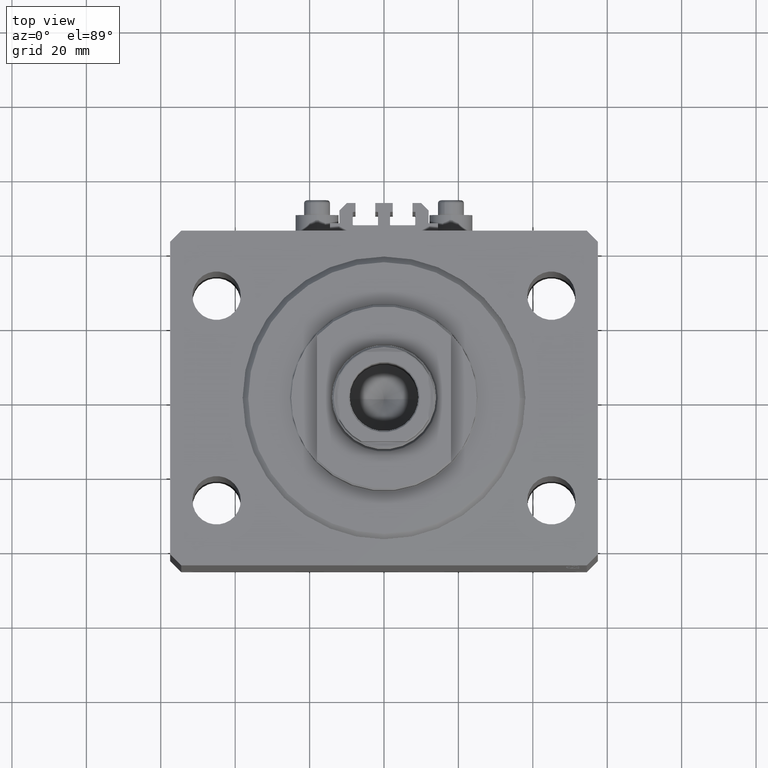
[diagram: clean part render]
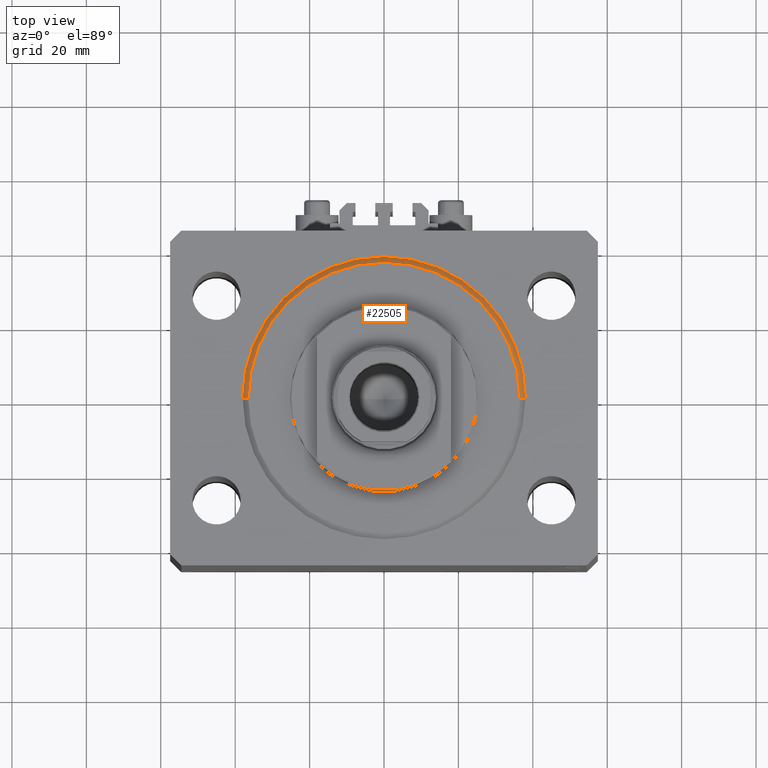
[diagram: same view with one face highlighted and labeled with its STEP entity id]
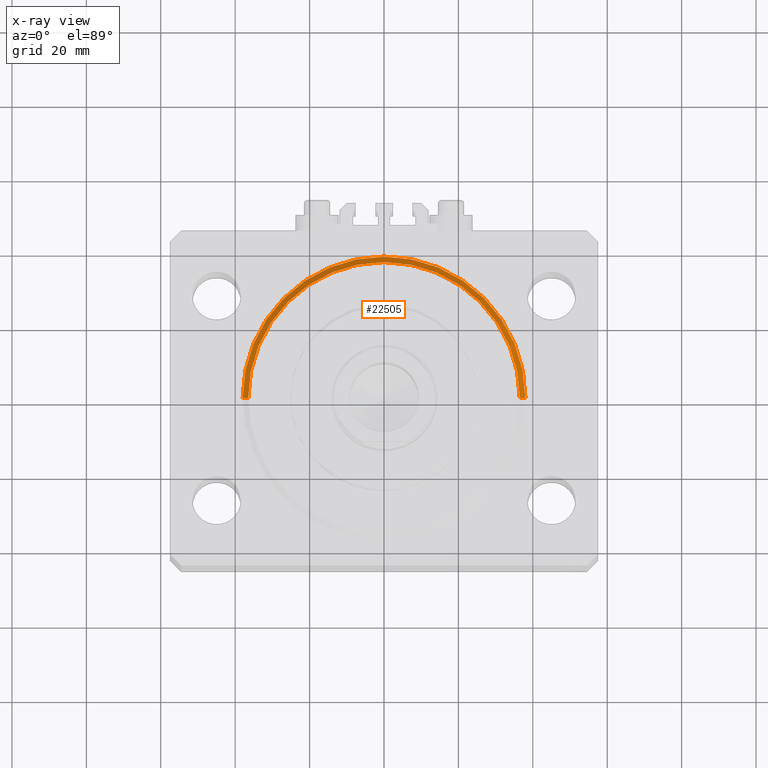
[diagram: x-ray of the same camera — body ghosted, the highlighted face saturated]
A machine part, top view. The second image highlights one B-rep face of the part: STEP entity #22505.
The next image is the same camera in x-ray: the body ghosted, the highlighted face saturated — about 0% of this face is hidden behind the body in this view.
In plain terms, the highlighted conical surface has half-angle 45 deg.
Its self-contained STEP definition (entity closure, byte-faithful):
#266 = AXIS2_PLACEMENT_3D ( 'NONE', #23198, #44775, #5029 ) ;
#1026 = CARTESIAN_POINT ( 'NONE',  ( 38.00000000000000000, 4.653657836759941941E-15, 1.499999999999994449 ) ) ;
#2280 = VERTEX_POINT ( 'NONE', #37108 ) ;
#5016 = VECTOR ( 'NONE', #25759, 1000.000000000000114 ) ;
#5029 = DIRECTION ( 'NONE',  ( 1.000000000000000000, 0.000000000000000000, 0.000000000000000000 ) ) ;
#6418 = LINE ( 'NONE', #13350, #12576 ) ;
#7367 = FACE_OUTER_BOUND ( 'NONE', #36908, .T. ) ;
#9475 = ORIENTED_EDGE ( 'NONE', *, *, #25050, .T. ) ;
#11788 = CONICAL_SURFACE ( 'NONE', #43943, 38.00000000000000000, 0.7853981633974506105 ) ;
#11822 = ORIENTED_EDGE ( 'NONE', *, *, #35004, .F. ) ;
#12576 = VECTOR ( 'NONE', #42583, 1000.000000000000114 ) ;
#13350 = CARTESIAN_POINT ( 'NONE',  ( 38.00000000000000000, 0.000000000000000000, 1.499999999999994449 ) ) ;
#18814 = EDGE_CURVE ( 'NONE', #2280, #29551, #30066, .T. ) ;
#20315 = DIRECTION ( 'NONE',  ( -0.000000000000000000, -0.000000000000000000, 1.000000000000000000 ) ) ;
#21939 = EDGE_CURVE ( 'NONE', #29551, #42279, #6418, .T. ) ;
#22505 = ADVANCED_FACE ( 'NONE', ( #7367 ), #11788, .T. ) ;
#23198 = CARTESIAN_POINT ( 'NONE',  ( 0.000000000000000000, 0.000000000000000000, 0.000000000000000000 ) ) ;
#25050 = EDGE_CURVE ( 'NONE', #2280, #33266, #44686, .T. ) ;
#25325 = DIRECTION ( 'NONE',  ( 1.000000000000000000, 0.000000000000000000, 0.000000000000000000 ) ) ;
#25759 = DIRECTION ( 'NONE',  ( -0.7071067811865491270, 8.659560562354953812E-17, 0.7071067811865459074 ) ) ;
#29551 = VERTEX_POINT ( 'NONE', #33047 ) ;
#29778 = ORIENTED_EDGE ( 'NONE', *, *, #21939, .F. ) ;
#30066 = CIRCLE ( 'NONE', #266, 36.50000000000000000 ) ;
#32304 = DIRECTION ( 'NONE',  ( -0.000000000000000000, -0.000000000000000000, 1.000000000000000000 ) ) ;
#33047 = CARTESIAN_POINT ( 'NONE',  ( 36.50000000000000000, 0.000000000000000000, 0.000000000000000000 ) ) ;
#33266 = VERTEX_POINT ( 'NONE', #42615 ) ;
#33573 = ORIENTED_EDGE ( 'NONE', *, *, #18814, .F. ) ;
#35004 = EDGE_CURVE ( 'NONE', #42279, #33266, #41885, .T. ) ;
#35394 = DIRECTION ( 'NONE',  ( 1.000000000000000000, 0.000000000000000000, 0.000000000000000000 ) ) ;
#36783 = CARTESIAN_POINT ( 'NONE',  ( -38.00000000000000000, 4.653657836759941941E-15, 1.499999999999994449 ) ) ;
#36908 = EDGE_LOOP ( 'NONE', ( #33573, #9475, #11822, #29778 ) ) ;
#37108 = CARTESIAN_POINT ( 'NONE',  ( -36.50000000000000000, 4.561809326823889791E-15, 0.000000000000000000 ) ) ;
#38519 = CARTESIAN_POINT ( 'NONE',  ( 0.000000000000000000, 0.000000000000000000, 1.499999999999994449 ) ) ;
#41885 = CIRCLE ( 'NONE', #42632, 38.00000000000000000 ) ;
#42279 = VERTEX_POINT ( 'NONE', #1026 ) ;
#42583 = DIRECTION ( 'NONE',  ( 0.7071067811865491270, 0.000000000000000000, 0.7071067811865459074 ) ) ;
#42615 = CARTESIAN_POINT ( 'NONE',  ( -38.00000000000000000, 0.000000000000000000, 1.499999999999994449 ) ) ;
#42632 = AXIS2_PLACEMENT_3D ( 'NONE', #38519, #20315, #35394 ) ;
#43943 = AXIS2_PLACEMENT_3D ( 'NONE', #46914, #32304, #25325 ) ;
#44686 = LINE ( 'NONE', #36783, #5016 ) ;
#44775 = DIRECTION ( 'NONE',  ( -0.000000000000000000, -0.000000000000000000, -1.000000000000000000 ) ) ;
#46914 = CARTESIAN_POINT ( 'NONE',  ( 0.000000000000000000, 0.000000000000000000, 1.499999999999994449 ) ) ;